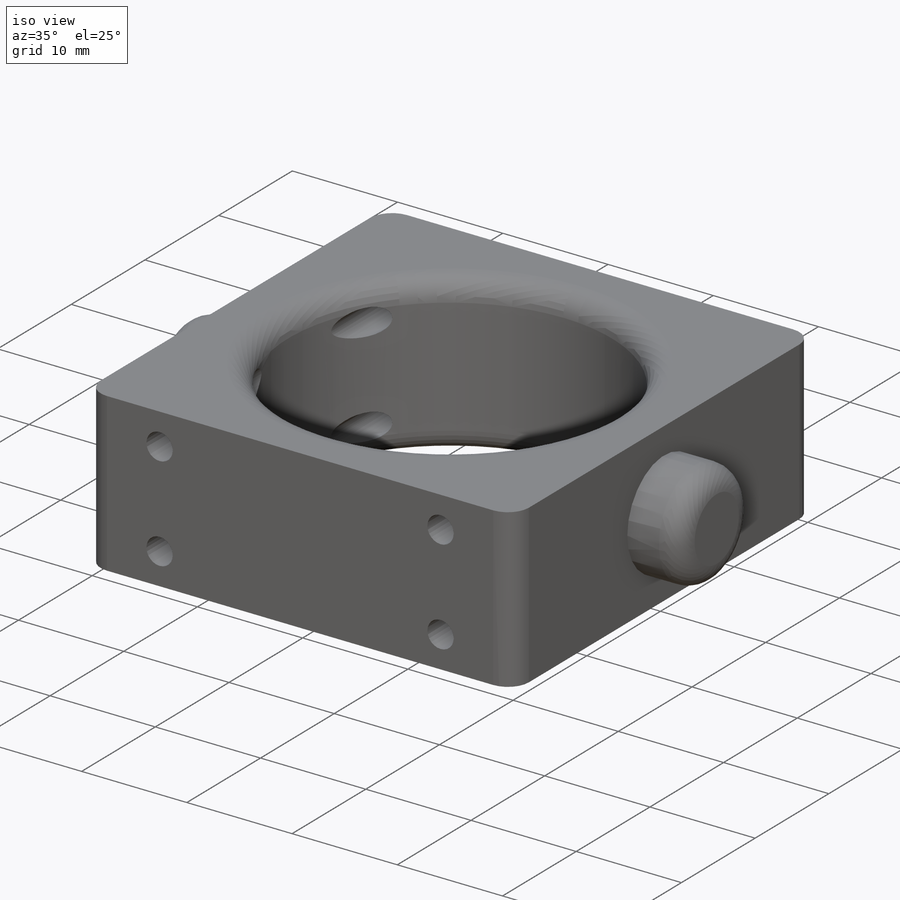
[diagram: iso view]
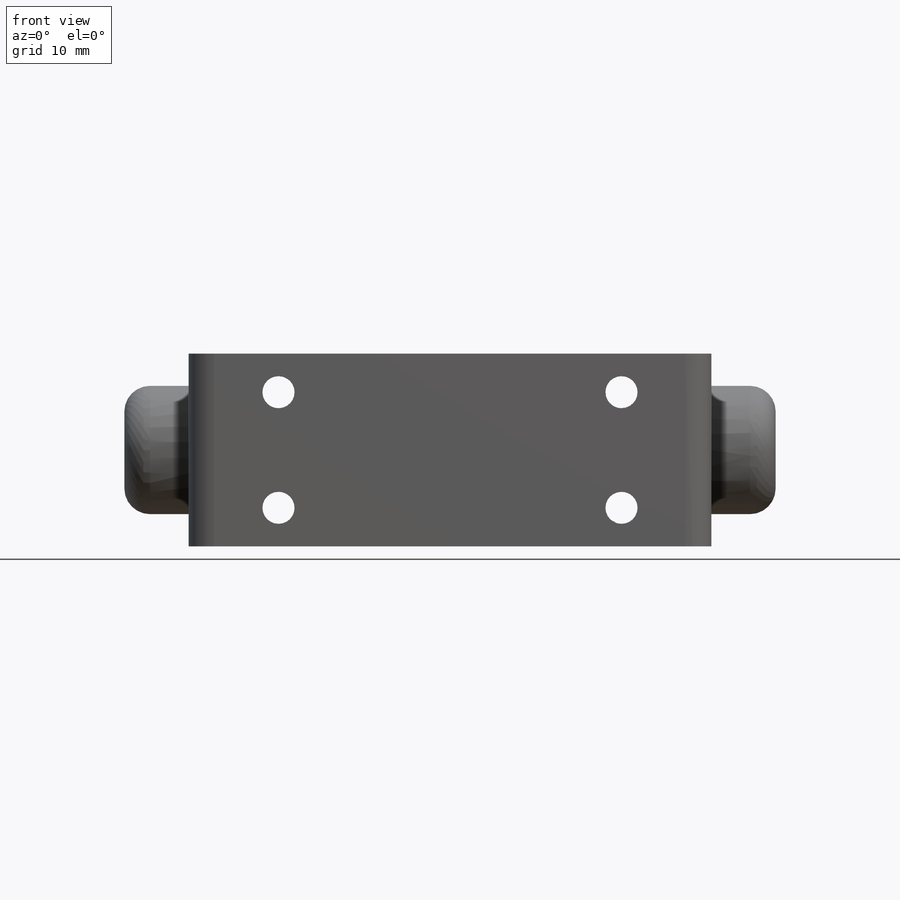
[diagram: front view]
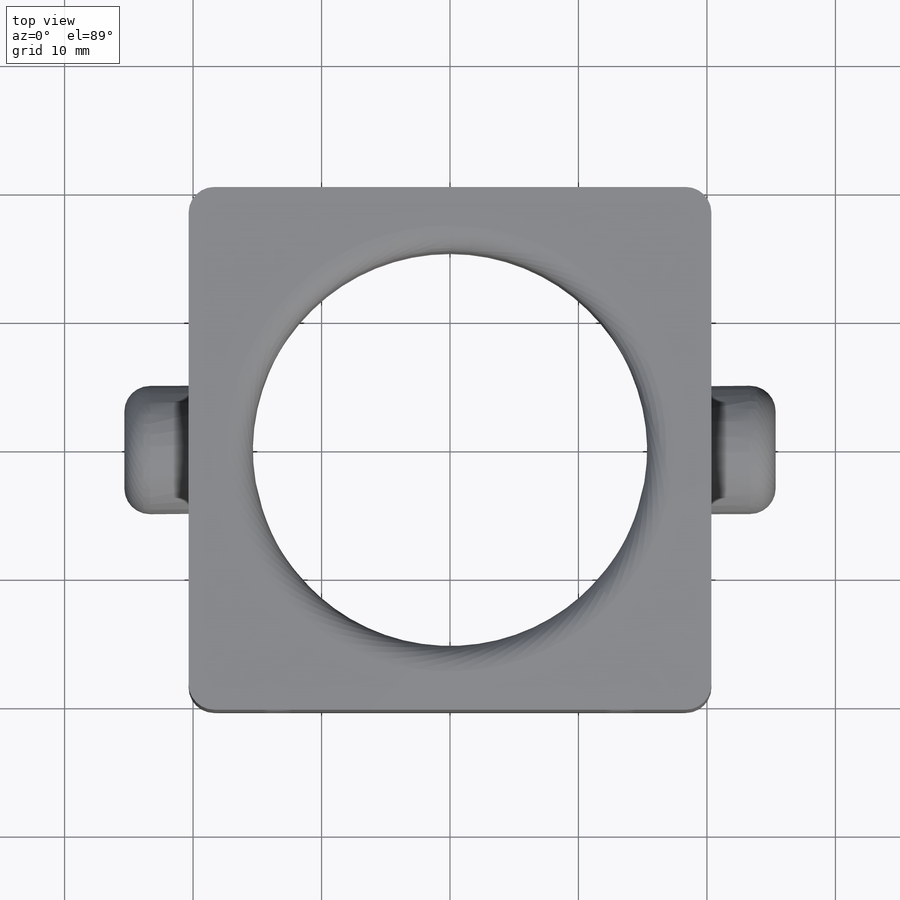
[diagram: top view]
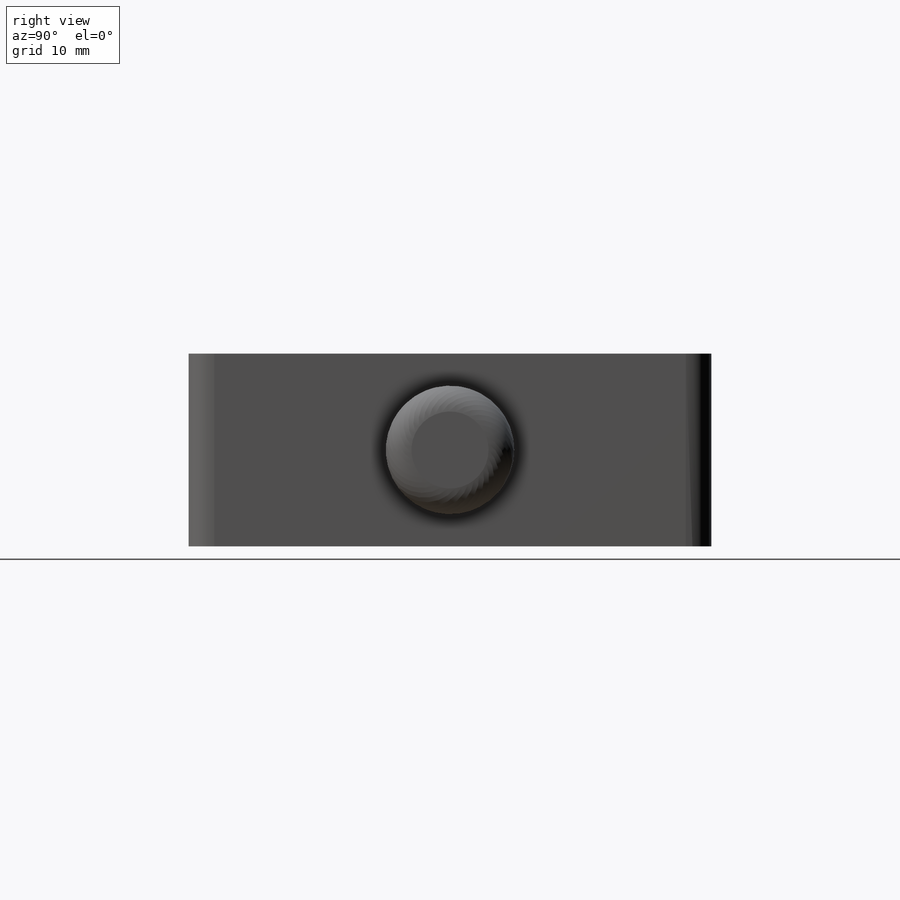
[diagram: right view]
SOLIDWORKS PART (.sldprt)
format: sldprt  version: not decoded by parser v0  size: 378,880 bytes
history: native  units: mm
features: sketch x6, extrude x2, fillet x2, hole x2, material x1, plane x1, mirror x1 (+11 scaffold rows collapsed)
feature tree (26):
  scaffold x11  (default folders/planes/origin — collapsed)
  material  "Material <not specified>"
  sketch  "Sketch1"  dims[D3=30.7mm D1=40.7mm D2=40.7mm]
  extrude  "Boss-Extrude1"  Depth=15mm
  sketch  "Sketch2"  dims[D1=10.0mm]
  extrude  "Boss-Extrude2"  Depth=5mm
  plane  "Plane1"  Offset=20.35mm
  mirror  "Mirror1"
  fillet  "Fillet1"  Radius=2mm
  fillet  "Fillet2"  Radius=2mm
  hole  "Tap Drill for M3x0.5 Tap1"  Diameter=2.5mm Depth=20.349mm
  sketch  "Sketch4"  dims[D1=3.0mm D2=3.0mm D3=5.0mm D4=5.0mm D5=5.0mm D6=5.0mm D7=3.0mm D8=3.0mm]
  sketch  "Sketch3"  dims[hole-wizard template sketch: 47 standard entries collapsed; hole parameters kept: c15.Hole Depth=20.349mm c15.D3=~14.816244mm c15.Drill Angle=118.0deg]
  hole  "Tap Drill for M3x0.5 Tap2"  Diameter=2.5mm Depth=20.35mm
  sketch  "Sketch8"  dims[c1.D1=5.0mm c1.D2=5.0mm c1.D3=3.0mm c1.D4=3.0mm c1.D5=3.0mm c1.D6=3.0mm c1.D7=~5.846636mm c2.D6=3.0mm c2.D7=5.0mm c2.D8=5.0mm]
  sketch  "Sketch7"  dims[hole-wizard template sketch: 47 standard entries collapsed; hole parameters kept: c15.Hole Depth=20.35mm c15.D3=~14.816244mm c15.Drill Angle=118.0deg]
decode coverage: 12 of 13 modeling features carry decoded parameters
note: ~ marks probable driven/reference dimensions
note: suppression state not decoded; provenance and decode notes live in map.json
